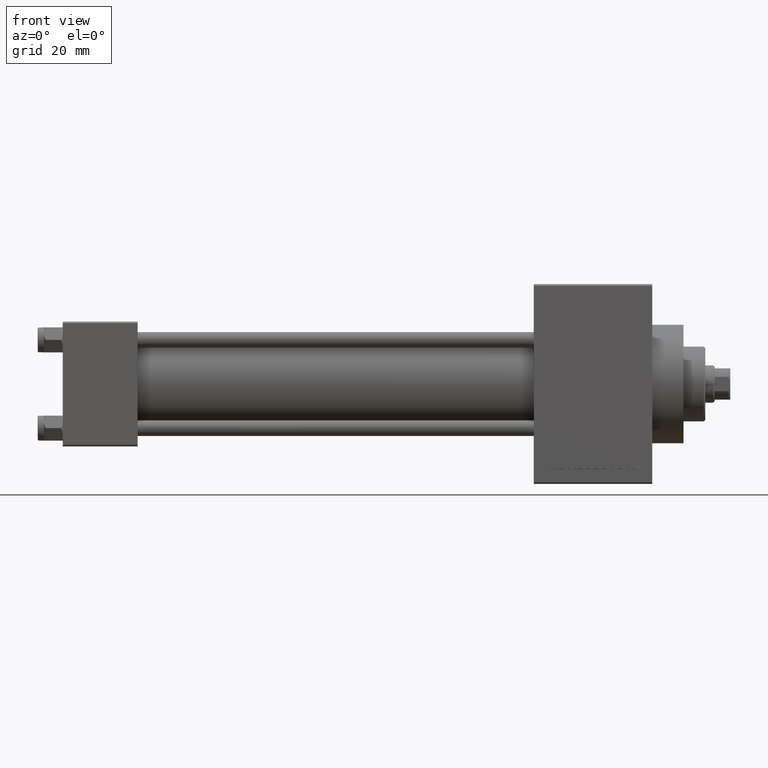
[diagram: clean part render]
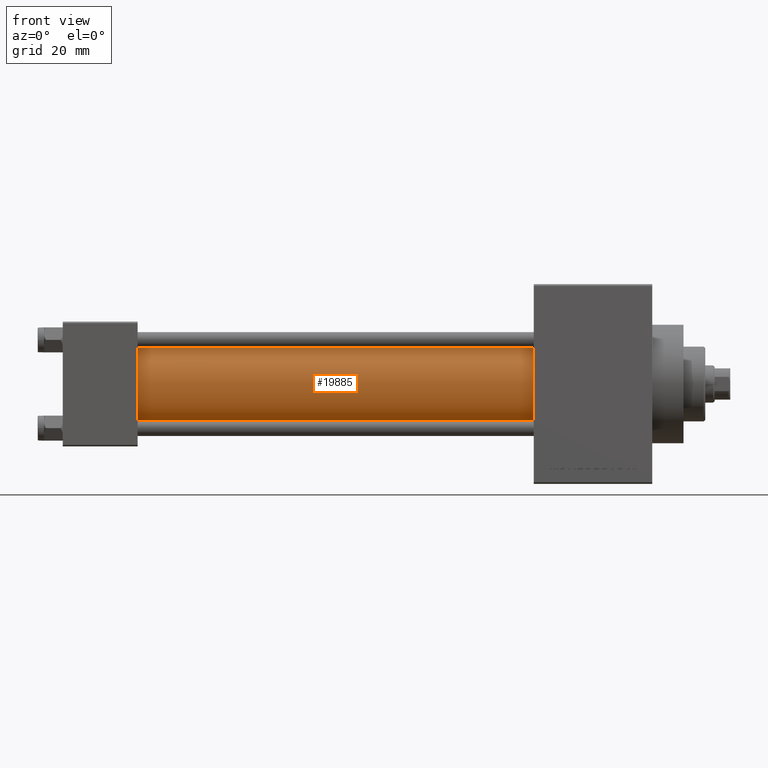
[diagram: same view with one face highlighted and labeled with its STEP entity id]
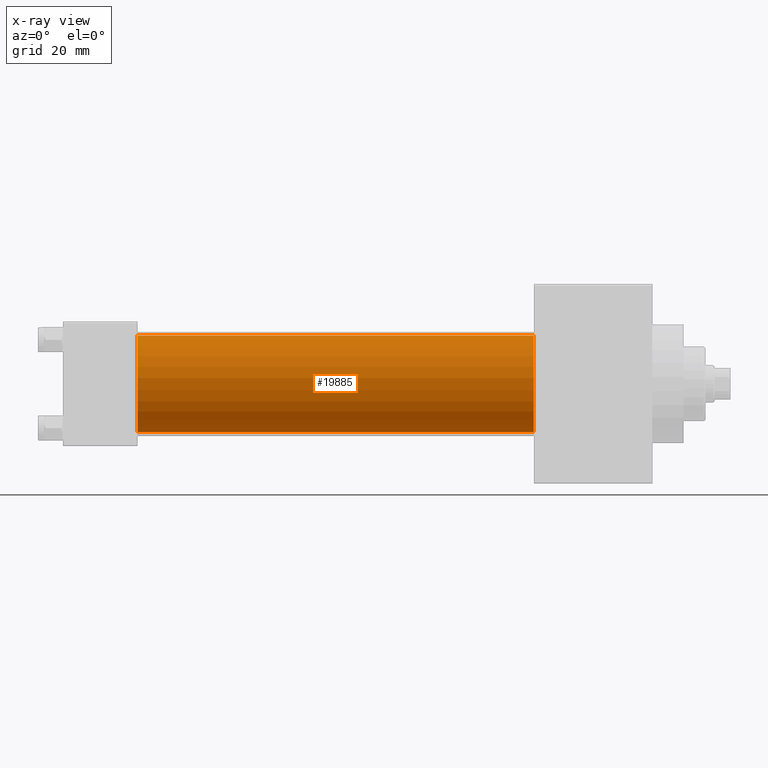
[diagram: x-ray of the same camera — body ghosted, the highlighted face saturated]
A machine part, front view. The second image highlights one B-rep face of the part: STEP entity #19885.
The next image is the same camera in x-ray: the body ghosted, the highlighted face saturated — about 0% of this face is hidden behind the body in this view.
In plain terms, the highlighted cylindrical surface (partial cylindrical patch) has radius 15.5 mm, axis along (-1, -0, -0).
Its self-contained STEP definition (entity closure, byte-faithful):
#1214 = AXIS2_PLACEMENT_3D ( 'NONE', #20131, #30902, #5076 ) ;
#1743 = CARTESIAN_POINT ( 'NONE',  ( 23.99999999999999289, -7.038826752868131828E-16, -15.50000000000000000 ) ) ;
#1959 = DIRECTION ( 'NONE',  ( 1.000000000000000000, 0.000000000000000000, 0.000000000000000000 ) ) ;
#4037 = DIRECTION ( 'NONE',  ( 1.000000000000000000, 0.000000000000000000, 0.000000000000000000 ) ) ;
#4313 = EDGE_CURVE ( 'NONE', #15526, #12801, #8978, .T. ) ;
#5076 = DIRECTION ( 'NONE',  ( 0.000000000000000000, 0.000000000000000000, 1.000000000000000000 ) ) ;
#8839 = LINE ( 'NONE', #23439, #37642 ) ;
#8978 = LINE ( 'NONE', #35054, #14554 ) ;
#11360 = CARTESIAN_POINT ( 'NONE',  ( 23.99999999999999289, -2.602085213965210642E-15, 15.50000000000000000 ) ) ;
#11522 = ORIENTED_EDGE ( 'NONE', *, *, #40201, .T. ) ;
#11688 = DIRECTION ( 'NONE',  ( 0.000000000000000000, 0.000000000000000000, 1.000000000000000000 ) ) ;
#12248 = FACE_OUTER_BOUND ( 'NONE', #15292, .T. ) ;
#12759 = AXIS2_PLACEMENT_3D ( 'NONE', #34963, #1959, #16538 ) ;
#12801 = VERTEX_POINT ( 'NONE', #1743 ) ;
#14554 = VECTOR ( 'NONE', #16393, 1000.000000000000000 ) ;
#15292 = EDGE_LOOP ( 'NONE', ( #20079, #45598, #11522, #30747 ) ) ;
#15526 = VERTEX_POINT ( 'NONE', #44163 ) ;
#16393 = DIRECTION ( 'NONE',  ( -1.000000000000000000, -0.000000000000000000, -0.000000000000000000 ) ) ;
#16538 = DIRECTION ( 'NONE',  ( 0.000000000000000000, 0.000000000000000000, -1.000000000000000000 ) ) ;
#19885 = ADVANCED_FACE ( 'NONE', ( #12248 ), #23724, .T. ) ;
#20079 = ORIENTED_EDGE ( 'NONE', *, *, #4313, .F. ) ;
#20131 = CARTESIAN_POINT ( 'NONE',  ( 151.0000000000000000, -2.602085213965210642E-15, 0.000000000000000000 ) ) ;
#21949 = CIRCLE ( 'NONE', #12759, 15.50000000000000000 ) ;
#21993 = CARTESIAN_POINT ( 'NONE',  ( 151.0000000000000000, -2.602085213965210642E-15, 15.50000000000000000 ) ) ;
#22979 = EDGE_CURVE ( 'NONE', #43968, #15526, #21949, .T. ) ;
#23439 = CARTESIAN_POINT ( 'NONE',  ( 151.0000000000000000, -2.602085213965210642E-15, 15.50000000000000000 ) ) ;
#23664 = DIRECTION ( 'NONE',  ( -1.000000000000000000, -0.000000000000000000, -0.000000000000000000 ) ) ;
#23724 = CYLINDRICAL_SURFACE ( 'NONE', #1214, 15.50000000000000000 ) ;
#30747 = ORIENTED_EDGE ( 'NONE', *, *, #41321, .T. ) ;
#30902 = DIRECTION ( 'NONE',  ( -1.000000000000000000, -0.000000000000000000, -0.000000000000000000 ) ) ;
#32330 = CIRCLE ( 'NONE', #36161, 15.50000000000000000 ) ;
#33721 = VERTEX_POINT ( 'NONE', #11360 ) ;
#33926 = CARTESIAN_POINT ( 'NONE',  ( 23.99999999999999289, -2.602085213965210642E-15, 0.000000000000000000 ) ) ;
#34963 = CARTESIAN_POINT ( 'NONE',  ( 151.0000000000000000, -2.602085213965210642E-15, 0.000000000000000000 ) ) ;
#35054 = CARTESIAN_POINT ( 'NONE',  ( 151.0000000000000000, -7.038826752868131828E-16, -15.50000000000000000 ) ) ;
#36161 = AXIS2_PLACEMENT_3D ( 'NONE', #33926, #4037, #11688 ) ;
#37642 = VECTOR ( 'NONE', #23664, 1000.000000000000000 ) ;
#40201 = EDGE_CURVE ( 'NONE', #43968, #33721, #8839, .T. ) ;
#41321 = EDGE_CURVE ( 'NONE', #33721, #12801, #32330, .T. ) ;
#43968 = VERTEX_POINT ( 'NONE', #21993 ) ;
#44163 = CARTESIAN_POINT ( 'NONE',  ( 151.0000000000000000, -7.038826752868131828E-16, -15.50000000000000000 ) ) ;
#45598 = ORIENTED_EDGE ( 'NONE', *, *, #22979, .F. ) ;